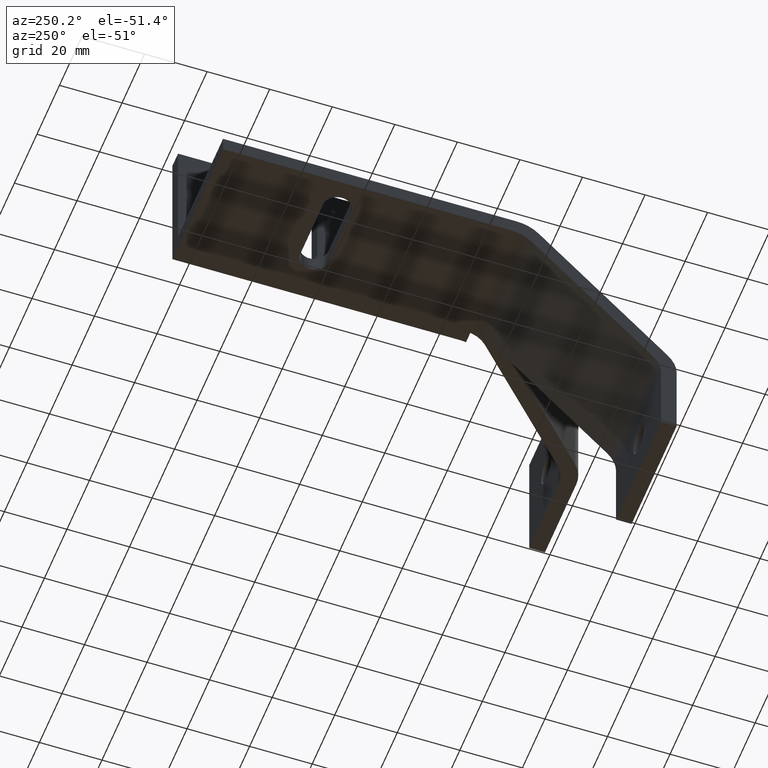
[diagram: clean part render]
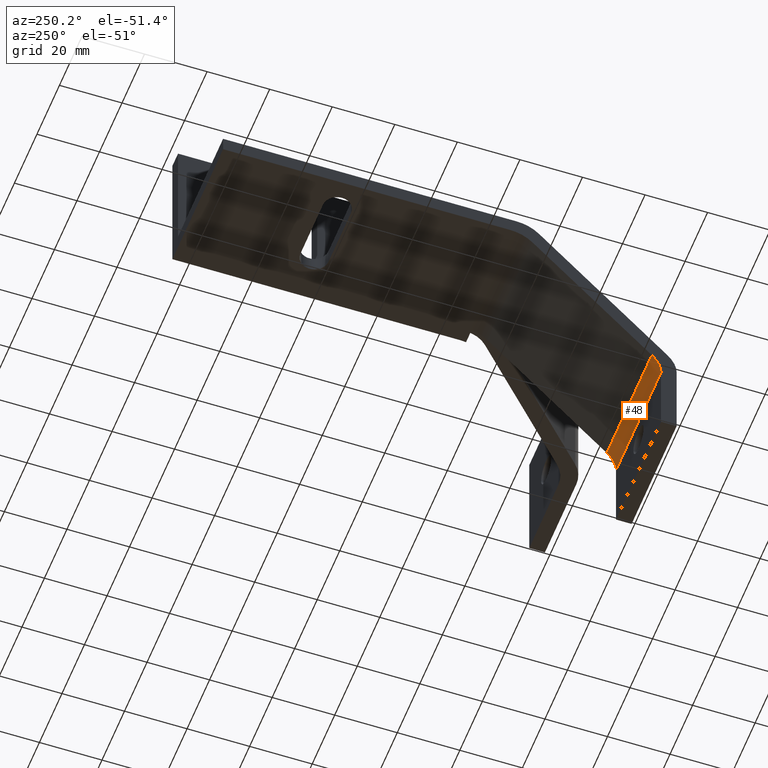
[diagram: same view with one face highlighted and labeled with its STEP entity id]
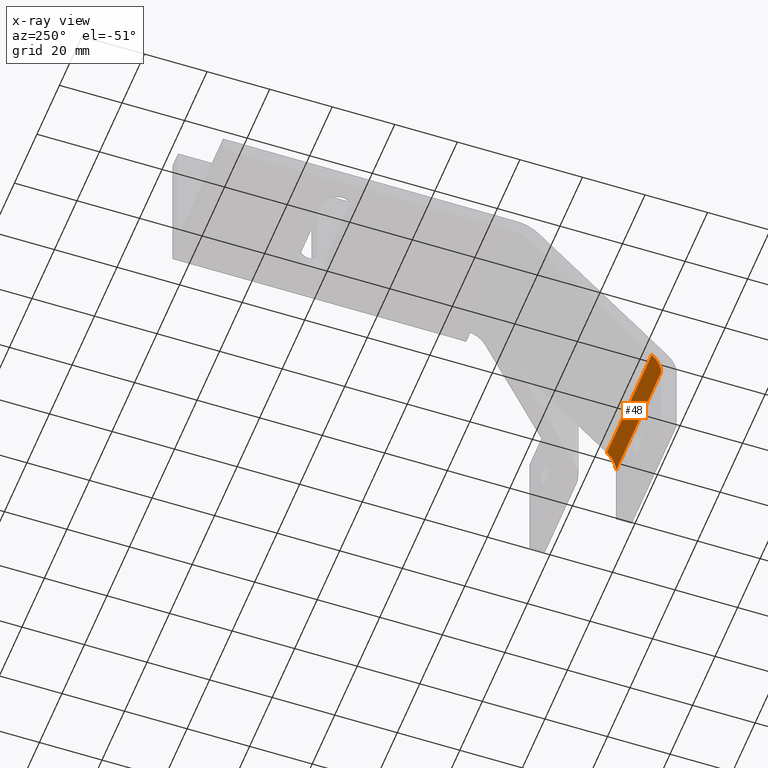
[diagram: x-ray of the same camera — body ghosted, the highlighted face saturated]
A machine part, auxiliary view. The second image highlights one B-rep face of the part: STEP entity #48.
The next image is the same camera in x-ray: the body ghosted, the highlighted face saturated — about 0% of this face is hidden behind the body in this view.
In plain terms, the highlighted cylindrical surface (edge-blend (fillet) strip) has radius 10 mm, axis along (-1, 0, 0).
Its self-contained STEP definition (entity closure, byte-faithful):
#10 = VERTEX_POINT ( 'NONE', #1280 ) ;
#13 = VERTEX_POINT ( 'NONE', #1283 ) ;
#14 = VERTEX_POINT ( 'NONE', #1284 ) ;
#48 = ADVANCED_FACE ( 'NONE', ( #617 ), #616, .F. ) ;
#69 = EDGE_CURVE ( 'NONE', #1294, #10, #572, .T. ) ;
#70 = EDGE_CURVE ( 'NONE', #1294, #14, #568, .T. ) ;
#76 = EDGE_CURVE ( 'NONE', #13, #10, #554, .T. ) ;
#106 = EDGE_CURVE ( 'NONE', #14, #13, #497, .T. ) ;
#199 = CARTESIAN_POINT ( 'NONE',  ( -117.0000000000000000, 5.000000000000000900, -53.21320343600000100 ) ) ;
#496 = VECTOR ( 'NONE', #1028, 1000.000000000000000 ) ;
#497 = LINE ( 'NONE', #1027, #496 ) ;
#554 = CIRCLE ( 'NONE', #739, 10.00000000000000200 ) ;
#568 = CIRCLE ( 'NONE', #740, 10.00000000000000200 ) ;
#571 = VECTOR ( 'NONE', #1183, 1000.000000000000000 ) ;
#572 = LINE ( 'NONE', #1182, #571 ) ;
#616 = CYLINDRICAL_SURFACE ( 'NONE', #751, 10.00000000000000200 ) ;
#617 = FACE_OUTER_BOUND ( 'NONE', #662, .T. ) ;
#662 = EDGE_LOOP ( 'NONE', ( #866, #864, #865, #863 ) ) ;
#739 = AXIS2_PLACEMENT_3D ( 'NONE', #1126, #1127, #1128 ) ;
#740 = AXIS2_PLACEMENT_3D ( 'NONE', #1184, #1185, #1186 ) ;
#751 = AXIS2_PLACEMENT_3D ( 'NONE', #1383, #1384, #1385 ) ;
#863 = ORIENTED_EDGE ( 'NONE', *, *, #76, .T. ) ;
#864 = ORIENTED_EDGE ( 'NONE', *, *, #70, .T. ) ;
#865 = ORIENTED_EDGE ( 'NONE', *, *, #106, .T. ) ;
#866 = ORIENTED_EDGE ( 'NONE', *, *, #69, .F. ) ;
#1027 = CARTESIAN_POINT ( 'NONE',  ( -97.00000000000000000, 7.928932189675038900, -46.14213562259400400 ) ) ;
#1028 = DIRECTION ( 'NONE',  ( 1.000000000000000000, -0.0000000000000000000, -0.0000000000000000000 ) ) ;
#1126 = CARTESIAN_POINT ( 'NONE',  ( -77.00000000000000000, 15.00000000000000000, -53.21320343600000100 ) ) ;
#1127 = DIRECTION ( 'NONE',  ( 1.000000000000000000, -6.938893903907227400E-016, -4.814824860968086100E-031 ) ) ;
#1128 = DIRECTION ( 'NONE',  ( -1.387778780781445500E-015, -1.000000000000000000, -2.775557561562891000E-015 ) ) ;
#1182 = CARTESIAN_POINT ( 'NONE',  ( -97.00000000000000000, 5.000000000000000000, -53.21320343600000100 ) ) ;
#1183 = DIRECTION ( 'NONE',  ( 1.000000000000000000, 0.0000000000000000000, 0.0000000000000000000 ) ) ;
#1184 = CARTESIAN_POINT ( 'NONE',  ( -117.0000000000000000, 15.00000000000002700, -53.21320343600000100 ) ) ;
#1185 = DIRECTION ( 'NONE',  ( -1.000000000000000000, 6.938893903907227400E-016, 4.814824860968086100E-031 ) ) ;
#1186 = DIRECTION ( 'NONE',  ( 0.0000000000000000000, -1.000000000000000000, 0.0000000000000000000 ) ) ;
#1280 = CARTESIAN_POINT ( 'NONE',  ( -77.00000000000001400, 5.000000000000000900, -53.21320343600000100 ) ) ;
#1283 = CARTESIAN_POINT ( 'NONE',  ( -77.00000000000000000, 7.928932188837523000, -46.14213562329700800 ) ) ;
#1284 = CARTESIAN_POINT ( 'NONE',  ( -117.0000000000000000, 7.928932195561887200, -46.14213563557263600 ) ) ;
#1294 = VERTEX_POINT ( 'NONE', #199 ) ;
#1383 = CARTESIAN_POINT ( 'NONE',  ( -77.00000000000000000, 15.00000000000000000, -53.21320343600000100 ) ) ;
#1384 = DIRECTION ( 'NONE',  ( -1.000000000000000000, 6.938893903907227400E-016, 4.814824860968086100E-031 ) ) ;
#1385 = DIRECTION ( 'NONE',  ( -1.387778780781445500E-015, -1.000000000000000000, 0.0000000000000000000 ) ) ;